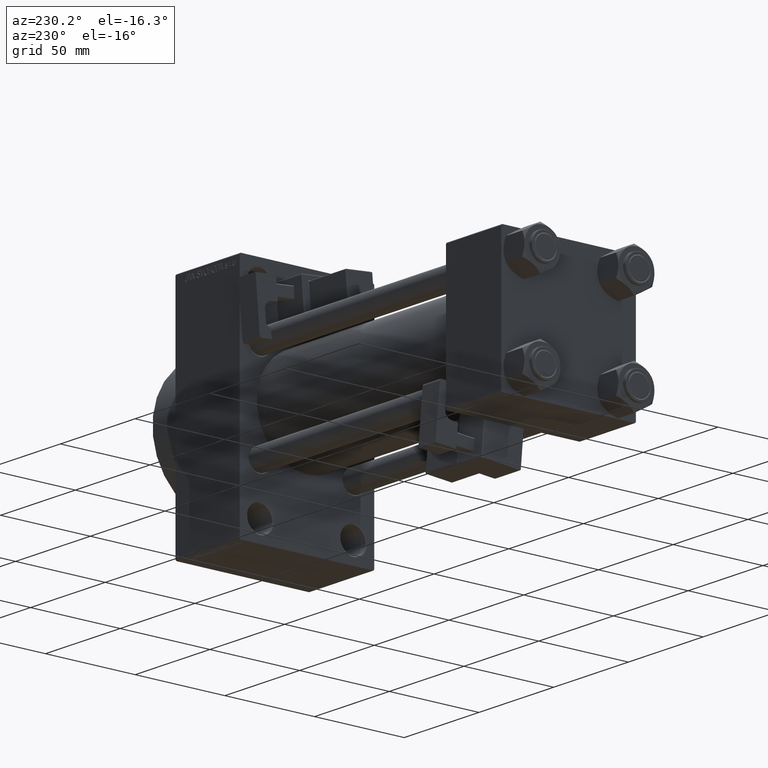
[diagram: clean part render]
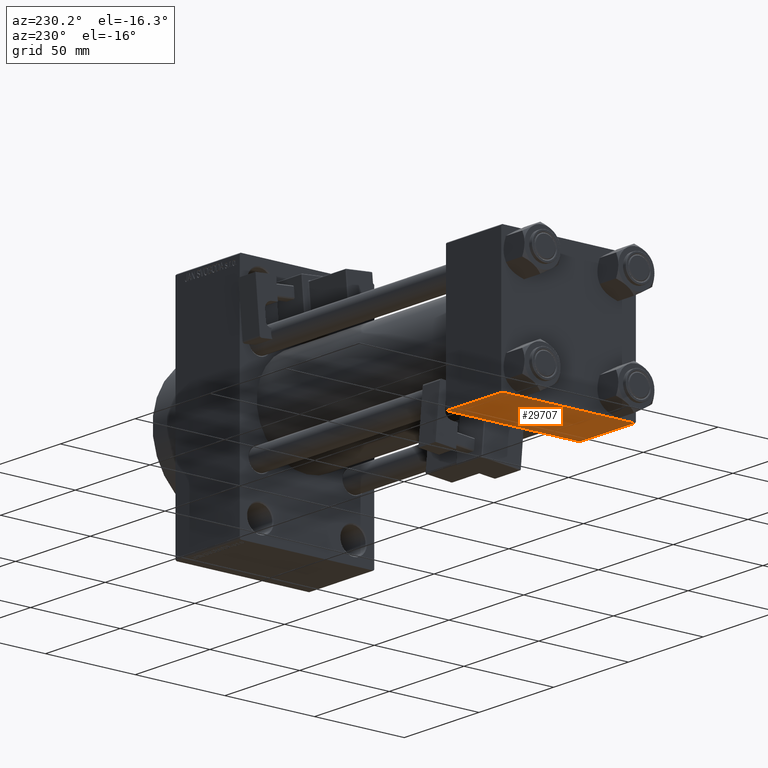
[diagram: same view with one face highlighted and labeled with its STEP entity id]
A machine part, auxiliary view. The second image highlights one B-rep face of the part: STEP entity #29707.
In plain terms, the highlighted planar face has unit normal (0, 0, -1).
Its self-contained STEP definition (entity closure, byte-faithful):
#80 = LINE ( 'NONE', #41318, #15027 ) ;
#1438 = VECTOR ( 'NONE', #40458, 1000.000000000000000 ) ;
#1722 = LINE ( 'NONE', #43943, #1438 ) ;
#3858 = VERTEX_POINT ( 'NONE', #16676 ) ;
#4550 = CARTESIAN_POINT ( 'NONE',  ( 37.00000000000000000, 36.99999999999997868, -37.50000000000000000 ) ) ;
#12757 = CARTESIAN_POINT ( 'NONE',  ( 0.000000000000000000, 37.49999999999999289, -37.50000000000000000 ) ) ;
#13810 = EDGE_CURVE ( 'NONE', #38642, #3858, #21227, .T. ) ;
#13905 = AXIS2_PLACEMENT_3D ( 'NONE', #16439, #47151, #46414 ) ;
#14415 = ORIENTED_EDGE ( 'NONE', *, *, #45256, .T. ) ;
#15027 = VECTOR ( 'NONE', #45050, 1000.000000000000000 ) ;
#16108 = CARTESIAN_POINT ( 'NONE',  ( 37.00000000000000000, -37.00000000000002132, -37.50000000000000711 ) ) ;
#16439 = CARTESIAN_POINT ( 'NONE',  ( 37.00000000000000000, 37.49999999999999289, -37.50000000000000000 ) ) ;
#16676 = CARTESIAN_POINT ( 'NONE',  ( 0.000000000000000000, -37.00000000000002132, -37.50000000000000711 ) ) ;
#17482 = ORIENTED_EDGE ( 'NONE', *, *, #35938, .T. ) ;
#21227 = LINE ( 'NONE', #12757, #45493 ) ;
#21883 = CARTESIAN_POINT ( 'NONE',  ( 0.000000000000000000, 36.99999999999997868, -37.50000000000000000 ) ) ;
#25093 = EDGE_LOOP ( 'NONE', ( #34464, #17482, #41836, #14415 ) ) ;
#27254 = LINE ( 'NONE', #42473, #33240 ) ;
#27857 = VERTEX_POINT ( 'NONE', #16108 ) ;
#29707 = ADVANCED_FACE ( 'NONE', ( #34701 ), #46909, .T. ) ;
#33240 = VECTOR ( 'NONE', #42974, 1000.000000000000000 ) ;
#34464 = ORIENTED_EDGE ( 'NONE', *, *, #13810, .F. ) ;
#34701 = FACE_OUTER_BOUND ( 'NONE', #25093, .T. ) ;
#35385 = EDGE_CURVE ( 'NONE', #35991, #27857, #1722, .T. ) ;
#35938 = EDGE_CURVE ( 'NONE', #38642, #35991, #80, .T. ) ;
#35991 = VERTEX_POINT ( 'NONE', #4550 ) ;
#38642 = VERTEX_POINT ( 'NONE', #21883 ) ;
#39248 = DIRECTION ( 'NONE',  ( 0.000000000000000000, -1.000000000000000000, -9.251858538542972814E-17 ) ) ;
#40458 = DIRECTION ( 'NONE',  ( 0.000000000000000000, -1.000000000000000000, -9.251858538542972814E-17 ) ) ;
#41318 = CARTESIAN_POINT ( 'NONE',  ( 37.00000000000000000, 36.99999999999997868, -37.50000000000000000 ) ) ;
#41836 = ORIENTED_EDGE ( 'NONE', *, *, #35385, .T. ) ;
#42473 = CARTESIAN_POINT ( 'NONE',  ( 0.000000000000000000, -37.00000000000002132, -37.50000000000000711 ) ) ;
#42974 = DIRECTION ( 'NONE',  ( -1.000000000000000000, 0.000000000000000000, 0.000000000000000000 ) ) ;
#43943 = CARTESIAN_POINT ( 'NONE',  ( 37.00000000000000000, 37.49999999999999289, -37.50000000000000000 ) ) ;
#45050 = DIRECTION ( 'NONE',  ( 1.000000000000000000, 0.000000000000000000, 0.000000000000000000 ) ) ;
#45256 = EDGE_CURVE ( 'NONE', #27857, #3858, #27254, .T. ) ;
#45493 = VECTOR ( 'NONE', #39248, 1000.000000000000000 ) ;
#46414 = DIRECTION ( 'NONE',  ( 0.000000000000000000, 1.000000000000000000, 9.251858538542972814E-17 ) ) ;
#46909 = PLANE ( 'NONE',  #13905 ) ;
#47151 = DIRECTION ( 'NONE',  ( 0.000000000000000000, 9.251858538542972814E-17, -1.000000000000000000 ) ) ;